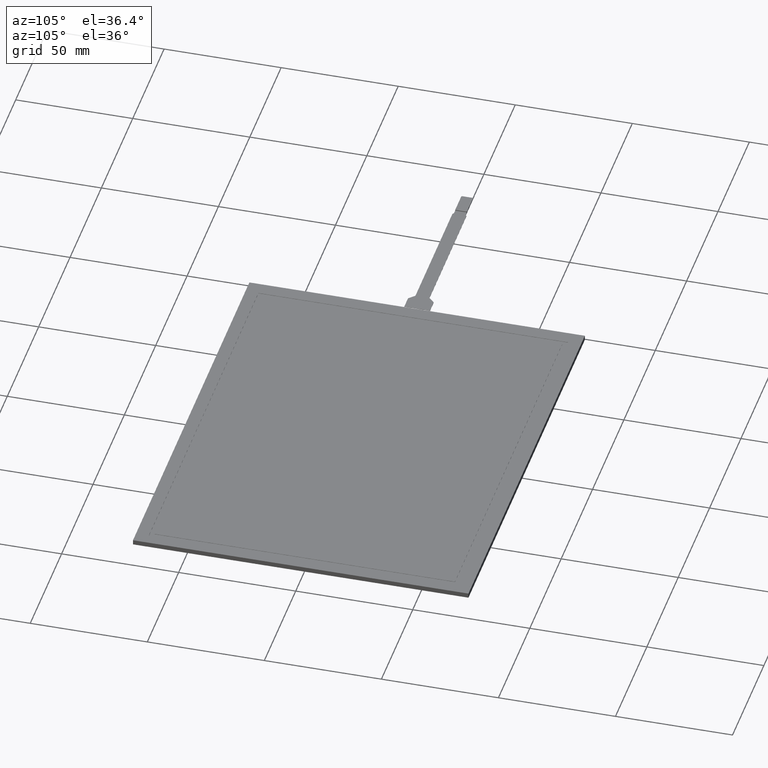
[diagram: clean part render]
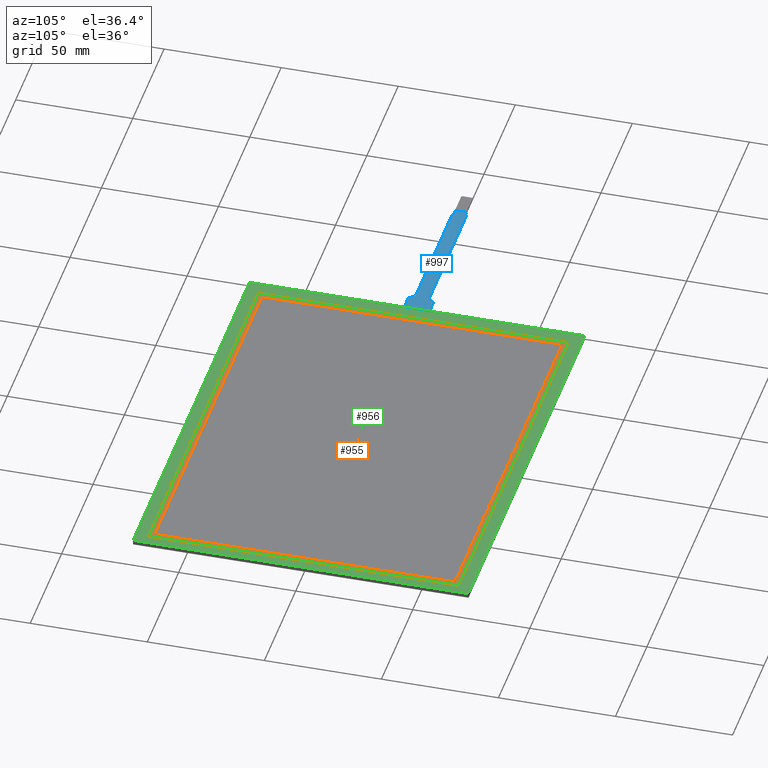
[diagram: same view with three faces highlighted in distinct colors, each labeled with its STEP entity id]
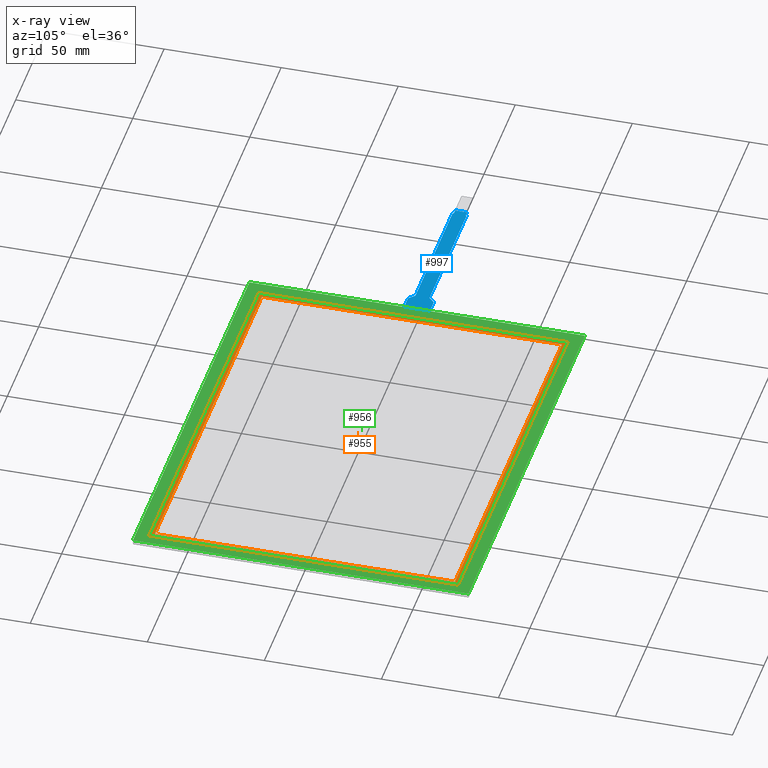
[diagram: x-ray of the same camera — body ghosted, the three highlighted faces saturated]
A machine part, auxiliary view with three faces highlighted in distinct colors.
The next image is the same camera in x-ray (body ghosted, the three faces saturated) — at least one of them is partly hidden behind the body in this view.
Their STEP definitions:

[orange] entity #955 — the highlighted planar face has unit normal (0, 0, -1).
#35=FACE_BOUND('',#98,.T.);
#45=FACE_OUTER_BOUND('',#97,.T.);
#97=EDGE_LOOP('',(#657,#658,#659,#660));
#98=EDGE_LOOP('',(#661,#662,#663,#664));
#145=LINE('',#1348,#271);
#149=LINE('',#1355,#275);
#152=LINE('',#1361,#278);
#154=LINE('',#1364,#280);
#157=LINE('',#1372,#283);
#161=LINE('',#1379,#287);
#164=LINE('',#1385,#290);
#166=LINE('',#1388,#292);
#271=VECTOR('',#1090,10.);
#275=VECTOR('',#1096,10.);
#278=VECTOR('',#1101,10.);
#280=VECTOR('',#1105,10.);
#283=VECTOR('',#1110,10.);
#287=VECTOR('',#1116,10.);
#290=VECTOR('',#1121,10.);
#292=VECTOR('',#1125,10.);
#397=VERTEX_POINT('',#1345);
#398=VERTEX_POINT('',#1347);
#400=VERTEX_POINT('',#1353);
#402=VERTEX_POINT('',#1359);
#405=VERTEX_POINT('',#1369);
#406=VERTEX_POINT('',#1371);
#408=VERTEX_POINT('',#1377);
#410=VERTEX_POINT('',#1383);
#489=EDGE_CURVE('',#397,#398,#145,.T.);
#493=EDGE_CURVE('',#400,#397,#149,.T.);
#496=EDGE_CURVE('',#402,#400,#152,.T.);
#498=EDGE_CURVE('',#398,#402,#154,.T.);
#501=EDGE_CURVE('',#405,#406,#157,.T.);
#505=EDGE_CURVE('',#408,#405,#161,.T.);
#508=EDGE_CURVE('',#410,#408,#164,.T.);
#510=EDGE_CURVE('',#406,#410,#166,.T.);
#657=ORIENTED_EDGE('',*,*,#510,.F.);
#658=ORIENTED_EDGE('',*,*,#501,.F.);
#659=ORIENTED_EDGE('',*,*,#505,.F.);
#660=ORIENTED_EDGE('',*,*,#508,.F.);
#661=ORIENTED_EDGE('',*,*,#498,.F.);
#662=ORIENTED_EDGE('',*,*,#489,.F.);
#663=ORIENTED_EDGE('',*,*,#493,.F.);
#664=ORIENTED_EDGE('',*,*,#496,.F.);
#909=PLANE('',#1028);
#955=ADVANCED_FACE('',(#45,#35),#909,.F.);
#1028=AXIS2_PLACEMENT_3D('',#1389,#1126,#1127);
#1090=DIRECTION('',(1.,0.,0.));
#1096=DIRECTION('',(0.,-1.,0.));
#1101=DIRECTION('',(-1.,0.,0.));
#1105=DIRECTION('',(0.,1.,0.));
#1110=DIRECTION('',(-2.68534669599433E-16,1.,0.));
#1116=DIRECTION('',(-1.,-1.52346212641531E-16,0.));
#1121=DIRECTION('',(0.,-1.,0.));
#1125=DIRECTION('',(1.,0.,0.));
#1126=DIRECTION('center_axis',(0.,0.,-1.));
#1127=DIRECTION('ref_axis',(-1.,0.,0.));
#1345=CARTESIAN_POINT('',(-85.45,-64.15,-0.1));
#1347=CARTESIAN_POINT('',(85.45,-64.15,-0.1));
#1348=CARTESIAN_POINT('',(85.45,-64.15,-0.1));
#1353=CARTESIAN_POINT('',(-85.45,64.15,-0.1));
#1355=CARTESIAN_POINT('',(-85.45,-64.15,-0.1));
#1359=CARTESIAN_POINT('',(85.45,64.15,-0.1));
#1361=CARTESIAN_POINT('',(-85.45,64.15,-0.1));
#1364=CARTESIAN_POINT('',(85.45,64.15,-0.1));
#1369=CARTESIAN_POINT('',(-87.45,-66.15,-0.1));
#1371=CARTESIAN_POINT('',(-87.45,66.15,-0.1));
#1372=CARTESIAN_POINT('',(-87.45,66.15,-0.1));
#1377=CARTESIAN_POINT('',(87.45,-66.15,-0.1));
#1379=CARTESIAN_POINT('',(-87.45,-66.15,-0.1));
#1383=CARTESIAN_POINT('',(87.45,66.15,-0.1));
#1385=CARTESIAN_POINT('',(87.45,-66.15,-0.1));
#1388=CARTESIAN_POINT('',(87.45,66.15,-0.1));
#1389=CARTESIAN_POINT('Origin',(-1.77635683940025E-14,0.,-0.1));

[blue] entity #997 — the highlighted planar face has unit normal (0, 0, 1).
#87=FACE_OUTER_BOUND('',#141,.T.);
#141=EDGE_LOOP('',(#877,#878,#879,#880,#881,#882,#883,#884,#885,#886,#887,
#888));
#233=LINE('',#1552,#359);
#236=LINE('',#1558,#362);
#240=LINE('',#1567,#366);
#244=LINE('',#1575,#370);
#247=LINE('',#1581,#373);
#250=LINE('',#1587,#376);
#253=LINE('',#1593,#379);
#256=LINE('',#1598,#382);
#258=LINE('',#1602,#384);
#261=LINE('',#1608,#387);
#264=LINE('',#1614,#390);
#267=LINE('',#1619,#393);
#359=VECTOR('',#1276,10.);
#362=VECTOR('',#1281,10.);
#366=VECTOR('',#1289,10.);
#370=VECTOR('',#1295,10.);
#373=VECTOR('',#1300,10.);
#376=VECTOR('',#1305,10.);
#379=VECTOR('',#1310,10.);
#382=VECTOR('',#1315,10.);
#384=VECTOR('',#1319,10.);
#387=VECTOR('',#1324,10.);
#390=VECTOR('',#1329,10.);
#393=VECTOR('',#1334,10.);
#464=VERTEX_POINT('',#1549);
#465=VERTEX_POINT('',#1551);
#467=VERTEX_POINT('',#1557);
#469=VERTEX_POINT('',#1565);
#470=VERTEX_POINT('',#1566);
#473=VERTEX_POINT('',#1574);
#475=VERTEX_POINT('',#1580);
#477=VERTEX_POINT('',#1586);
#479=VERTEX_POINT('',#1592);
#481=VERTEX_POINT('',#1601);
#483=VERTEX_POINT('',#1607);
#485=VERTEX_POINT('',#1613);
#589=EDGE_CURVE('',#465,#464,#233,.T.);
#592=EDGE_CURVE('',#467,#465,#236,.T.);
#596=EDGE_CURVE('',#469,#470,#240,.T.);
#600=EDGE_CURVE('',#470,#473,#244,.T.);
#603=EDGE_CURVE('',#473,#475,#247,.T.);
#606=EDGE_CURVE('',#475,#477,#250,.T.);
#609=EDGE_CURVE('',#477,#479,#253,.T.);
#612=EDGE_CURVE('',#479,#467,#256,.T.);
#614=EDGE_CURVE('',#464,#481,#258,.T.);
#617=EDGE_CURVE('',#481,#483,#261,.T.);
#620=EDGE_CURVE('',#483,#485,#264,.T.);
#623=EDGE_CURVE('',#485,#469,#267,.T.);
#877=ORIENTED_EDGE('',*,*,#592,.T.);
#878=ORIENTED_EDGE('',*,*,#589,.T.);
#879=ORIENTED_EDGE('',*,*,#614,.T.);
#880=ORIENTED_EDGE('',*,*,#617,.T.);
#881=ORIENTED_EDGE('',*,*,#620,.T.);
#882=ORIENTED_EDGE('',*,*,#623,.T.);
#883=ORIENTED_EDGE('',*,*,#596,.T.);
#884=ORIENTED_EDGE('',*,*,#600,.T.);
#885=ORIENTED_EDGE('',*,*,#603,.T.);
#886=ORIENTED_EDGE('',*,*,#606,.T.);
#887=ORIENTED_EDGE('',*,*,#609,.T.);
#888=ORIENTED_EDGE('',*,*,#612,.T.);
#945=PLANE('',#1082);
#997=ADVANCED_FACE('',(#87),#945,.T.);
#1082=AXIS2_PLACEMENT_3D('',#1621,#1336,#1337);
#1276=DIRECTION('',(1.,2.22044604925031E-15,0.));
#1281=DIRECTION('',(0.,-1.,0.));
#1289=DIRECTION('',(0.,1.,0.));
#1295=DIRECTION('',(-1.,3.70074341541719E-16,0.));
#1300=DIRECTION('',(-0.707106781186551,-0.707106781186544,0.));
#1305=DIRECTION('',(-1.,-7.52693576017055E-17,0.));
#1310=DIRECTION('',(-0.707106781186543,-0.707106781186552,0.));
#1315=DIRECTION('',(-1.,1.66533453693774E-15,0.));
#1319=DIRECTION('',(0.707106781186532,-0.707106781186563,0.));
#1324=DIRECTION('',(1.,0.,0.));
#1329=DIRECTION('',(0.707106781186547,-0.707106781186548,0.));
#1334=DIRECTION('',(1.,7.40148683083438E-16,0.));
#1336=DIRECTION('center_axis',(0.,0.,1.));
#1337=DIRECTION('ref_axis',(1.,0.,0.));
#1549=CARTESIAN_POINT('',(-161.65,-2.50000000000002,0.2));
#1551=CARTESIAN_POINT('',(-163.65,-2.50000000000003,0.2));
#1552=CARTESIAN_POINT('',(-173.65,-2.50000000000005,0.2));
#1557=CARTESIAN_POINT('',(-163.65,2.49999999999994,0.2));
#1558=CARTESIAN_POINT('',(-163.65,-1.25000000000004,0.2));
#1565=CARTESIAN_POINT('',(-93.65,-5.50000000000005,0.2));
#1566=CARTESIAN_POINT('',(-93.65,5.49999999999994,0.2));
#1567=CARTESIAN_POINT('',(-93.65,-5.50000000000005,0.2));
#1574=CARTESIAN_POINT('',(-99.65,5.49999999999995,0.2));
#1575=CARTESIAN_POINT('',(-93.65,5.49999999999994,0.2));
#1580=CARTESIAN_POINT('',(-102.15,2.99999999999995,0.2));
#1581=CARTESIAN_POINT('',(-99.65,5.49999999999995,0.2));
#1586=CARTESIAN_POINT('',(-161.15,2.99999999999995,0.2));
#1587=CARTESIAN_POINT('',(-102.15,2.99999999999995,0.2));
#1592=CARTESIAN_POINT('',(-161.65,2.49999999999993,0.2));
#1593=CARTESIAN_POINT('',(-161.15,2.99999999999995,0.2));
#1598=CARTESIAN_POINT('',(-161.65,2.49999999999993,0.2));
#1601=CARTESIAN_POINT('',(-161.15,-3.00000000000005,0.2));
#1602=CARTESIAN_POINT('',(-161.65,-2.50000000000002,0.2));
#1607=CARTESIAN_POINT('',(-102.15,-3.00000000000005,0.2));
#1608=CARTESIAN_POINT('',(-161.15,-3.00000000000005,0.2));
#1613=CARTESIAN_POINT('',(-99.65,-5.50000000000006,0.2));
#1614=CARTESIAN_POINT('',(-102.15,-3.00000000000005,0.2));
#1619=CARTESIAN_POINT('',(-99.65,-5.50000000000006,0.2));
#1621=CARTESIAN_POINT('Origin',(-133.65,-5.44009282066327E-14,0.2));

[green] entity #956 — the highlighted planar face has unit normal (0, 0, 1).
#36=FACE_BOUND('',#100,.T.);
#46=FACE_OUTER_BOUND('',#99,.T.);
#99=EDGE_LOOP('',(#665,#666,#667,#668));
#100=EDGE_LOOP('',(#669,#670,#671,#672));
#155=LINE('',#1368,#281);
#159=LINE('',#1376,#285);
#162=LINE('',#1382,#288);
#165=LINE('',#1387,#291);
#167=LINE('',#1393,#293);
#168=LINE('',#1395,#294);
#169=LINE('',#1397,#295);
#170=LINE('',#1398,#296);
#281=VECTOR('',#1108,10.);
#285=VECTOR('',#1114,10.);
#288=VECTOR('',#1119,10.);
#291=VECTOR('',#1124,10.);
#293=VECTOR('',#1130,10.);
#294=VECTOR('',#1131,10.);
#295=VECTOR('',#1132,10.);
#296=VECTOR('',#1133,10.);
#403=VERTEX_POINT('',#1366);
#404=VERTEX_POINT('',#1367);
#407=VERTEX_POINT('',#1375);
#409=VERTEX_POINT('',#1381);
#411=VERTEX_POINT('',#1391);
#412=VERTEX_POINT('',#1392);
#413=VERTEX_POINT('',#1394);
#414=VERTEX_POINT('',#1396);
#499=EDGE_CURVE('',#403,#404,#155,.T.);
#503=EDGE_CURVE('',#407,#403,#159,.T.);
#506=EDGE_CURVE('',#409,#407,#162,.T.);
#509=EDGE_CURVE('',#404,#409,#165,.T.);
#511=EDGE_CURVE('',#411,#412,#167,.T.);
#512=EDGE_CURVE('',#412,#413,#168,.T.);
#513=EDGE_CURVE('',#413,#414,#169,.T.);
#514=EDGE_CURVE('',#414,#411,#170,.T.);
#665=ORIENTED_EDGE('',*,*,#511,.T.);
#666=ORIENTED_EDGE('',*,*,#512,.T.);
#667=ORIENTED_EDGE('',*,*,#513,.T.);
#668=ORIENTED_EDGE('',*,*,#514,.T.);
#669=ORIENTED_EDGE('',*,*,#499,.T.);
#670=ORIENTED_EDGE('',*,*,#509,.T.);
#671=ORIENTED_EDGE('',*,*,#506,.T.);
#672=ORIENTED_EDGE('',*,*,#503,.T.);
#910=PLANE('',#1029);
#956=ADVANCED_FACE('',(#46,#36),#910,.T.);
#1029=AXIS2_PLACEMENT_3D('',#1390,#1128,#1129);
#1108=DIRECTION('',(-2.68534669599433E-16,1.,0.));
#1114=DIRECTION('',(-1.,-1.52346212641531E-16,0.));
#1119=DIRECTION('',(0.,-1.,0.));
#1124=DIRECTION('',(1.,0.,0.));
#1128=DIRECTION('center_axis',(0.,0.,1.));
#1129=DIRECTION('ref_axis',(1.,0.,0.));
#1130=DIRECTION('',(-1.,0.,0.));
#1131=DIRECTION('',(2.47921401172401E-16,-1.,0.));
#1132=DIRECTION('',(1.,1.43563322149805E-16,0.));
#1133=DIRECTION('',(1.239607005862E-16,1.,0.));
#1366=CARTESIAN_POINT('',(-87.45,-66.15,0.));
#1367=CARTESIAN_POINT('',(-87.45,66.15,0.));
#1368=CARTESIAN_POINT('',(-87.45,-33.075,0.));
#1375=CARTESIAN_POINT('',(87.45,-66.15,0.));
#1376=CARTESIAN_POINT('',(43.3,-66.15,0.));
#1381=CARTESIAN_POINT('',(87.45,66.15,0.));
#1382=CARTESIAN_POINT('',(87.45,33.075,0.));
#1387=CARTESIAN_POINT('',(-44.15,66.15,0.));
#1390=CARTESIAN_POINT('Origin',(-0.850000000000017,-4.44089209850063E-15,
0.));
#1391=CARTESIAN_POINT('',(91.95,71.65,0.));
#1392=CARTESIAN_POINT('',(-93.65,71.65,0.));
#1393=CARTESIAN_POINT('',(91.95,71.65,0.));
#1394=CARTESIAN_POINT('',(-93.65,-71.65,0.));
#1395=CARTESIAN_POINT('',(-93.65,71.65,0.));
#1396=CARTESIAN_POINT('',(91.95,-71.65,0.));
#1397=CARTESIAN_POINT('',(-93.65,-71.65,0.));
#1398=CARTESIAN_POINT('',(91.95,-71.65,0.));